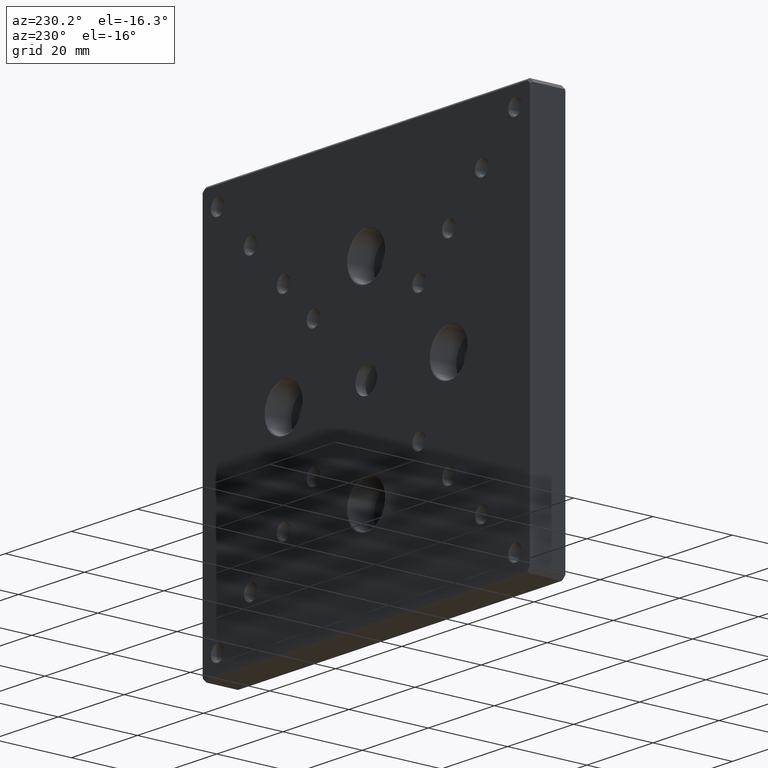
[diagram: clean part render]
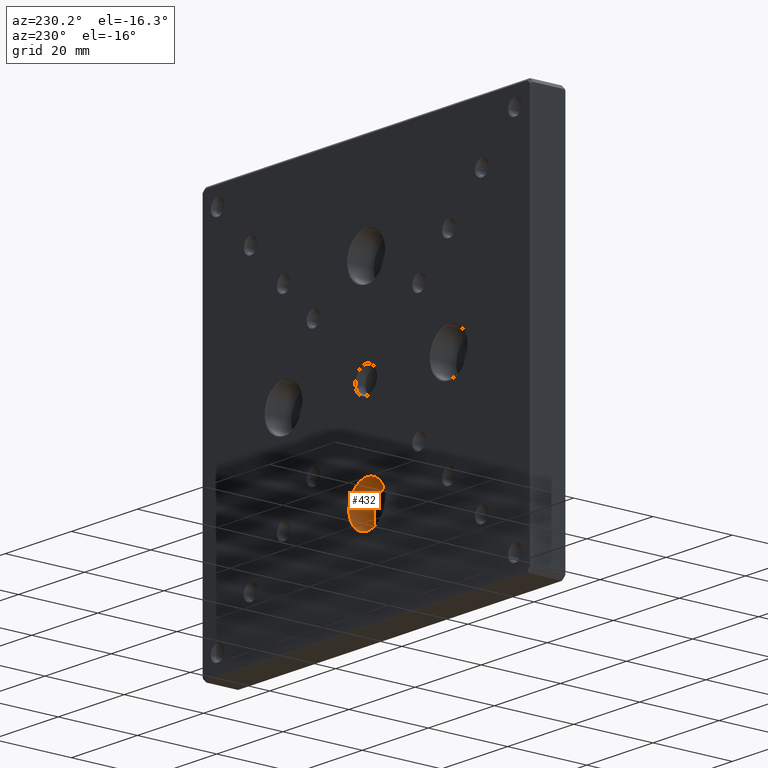
[diagram: same view with one face highlighted and labeled with its STEP entity id]
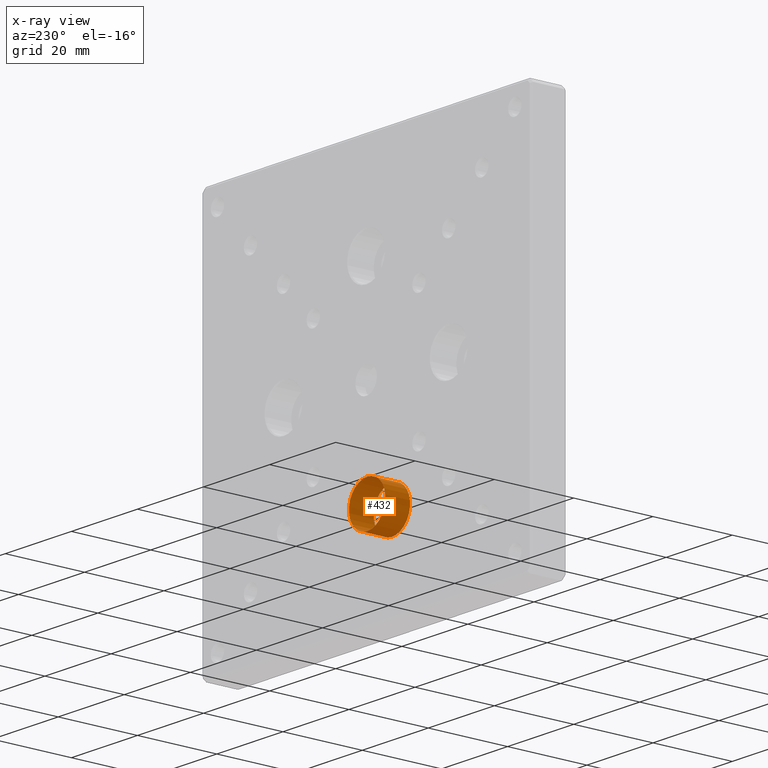
[diagram: x-ray of the same camera — body ghosted, the highlighted face saturated]
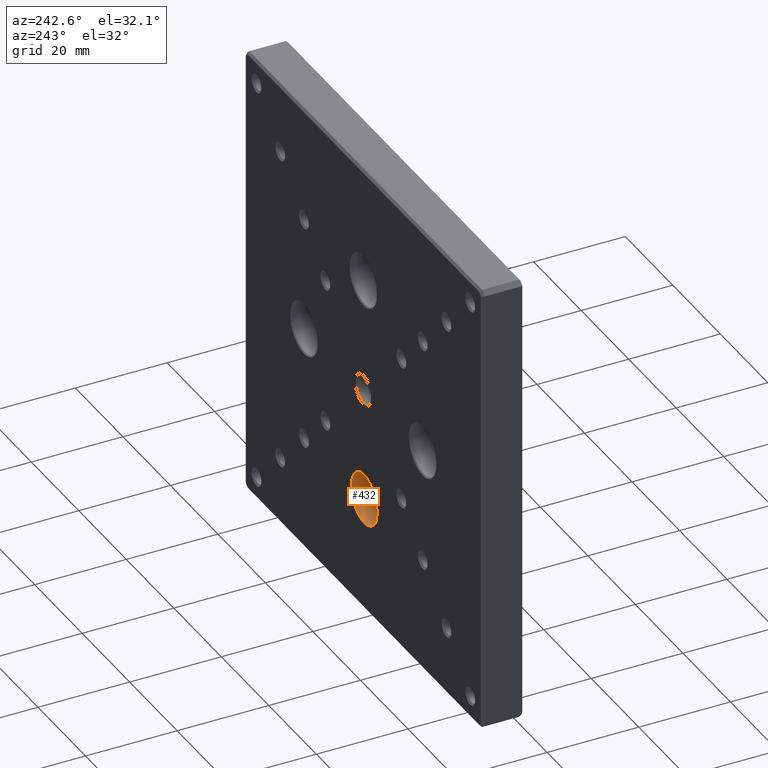
[diagram: same view with one face highlighted and labeled with its STEP entity id]
A machine part, auxiliary view. The second image highlights one B-rep face of the part: STEP entity #432.
The next image is the same camera in x-ray: the body ghosted, the highlighted face saturated — about 0% of this face is hidden behind the body in this view.
A second angle (auxiliary view) of the same face is appended — the face is thin or edge-on in the first view.
In plain terms, the highlighted cylindrical surface (bore or boss wall) has radius 5.5 mm, axis along (-0, 1, -0).
Its self-contained STEP definition (entity closure, byte-faithful):
#9 = DIRECTION ( 'NONE',  ( 0.000000000000000000, 0.000000000000000000, 1.000000000000000000 ) ) ;
#116 = VERTEX_POINT ( 'NONE', #592 ) ;
#246 = DIRECTION ( 'NONE',  ( 0.000000000000000000, 0.000000000000000000, 1.000000000000000000 ) ) ;
#372 = AXIS2_PLACEMENT_3D ( 'NONE', #996, #798, #9 ) ;
#387 = CARTESIAN_POINT ( 'NONE',  ( -6.938893903907228378E-15, 2.499999999999999556, -25.00000000000000000 ) ) ;
#432 = ADVANCED_FACE ( 'NONE', ( #1291, #1468 ), #1632, .F. ) ;
#545 = EDGE_LOOP ( 'NONE', ( #1100 ) ) ;
#592 = CARTESIAN_POINT ( 'NONE',  ( -6.938893903907228378E-15, 2.499999999999999556, -19.49999999999998934 ) ) ;
#719 = VERTEX_POINT ( 'NONE', #1953 ) ;
#798 = DIRECTION ( 'NONE',  ( 0.000000000000000000, 1.000000000000000000, 0.000000000000000000 ) ) ;
#837 = CIRCLE ( 'NONE', #372, 5.500000000000011546 ) ;
#899 = EDGE_CURVE ( 'NONE', #719, #719, #837, .T. ) ;
#926 = DIRECTION ( 'NONE',  ( -0.000000000000000000, 1.000000000000000000, -0.000000000000000000 ) ) ;
#996 = CARTESIAN_POINT ( 'NONE',  ( -6.938893903907228378E-15, 8.749999999999936051, -25.00000000000000000 ) ) ;
#1054 = DIRECTION ( 'NONE',  ( -0.000000000000000000, 1.000000000000000000, -0.000000000000000000 ) ) ;
#1100 = ORIENTED_EDGE ( 'NONE', *, *, #1406, .F. ) ;
#1158 = ORIENTED_EDGE ( 'NONE', *, *, #899, .T. ) ;
#1291 = FACE_OUTER_BOUND ( 'NONE', #1297, .T. ) ;
#1297 = EDGE_LOOP ( 'NONE', ( #1158 ) ) ;
#1406 = EDGE_CURVE ( 'NONE', #116, #116, #1794, .T. ) ;
#1409 = DIRECTION ( 'NONE',  ( 0.000000000000000000, 0.000000000000000000, 1.000000000000000000 ) ) ;
#1445 = CARTESIAN_POINT ( 'NONE',  ( -6.938893903907228378E-15, 9.000000000000000000, -25.00000000000000000 ) ) ;
#1468 = FACE_OUTER_BOUND ( 'NONE', #545, .T. ) ;
#1632 = CYLINDRICAL_SURFACE ( 'NONE', #1764, 5.500000000000011546 ) ;
#1764 = AXIS2_PLACEMENT_3D ( 'NONE', #1445, #926, #1409 ) ;
#1794 = CIRCLE ( 'NONE', #1831, 5.500000000000011546 ) ;
#1831 = AXIS2_PLACEMENT_3D ( 'NONE', #387, #1054, #246 ) ;
#1953 = CARTESIAN_POINT ( 'NONE',  ( -6.938893903907228378E-15, 8.749999999999936051, -19.49999999999998934 ) ) ;